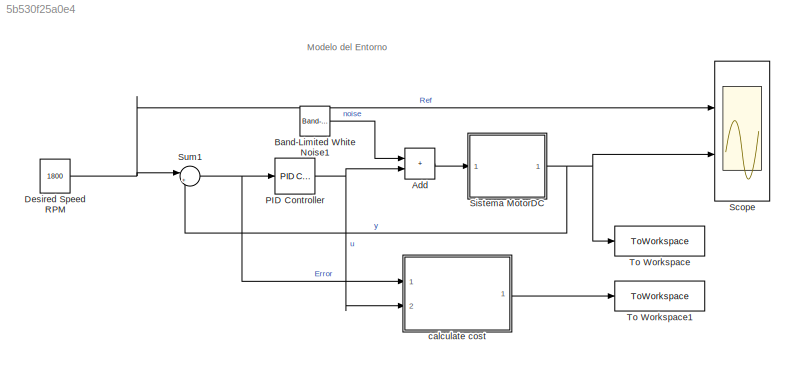
MODEL slx_5b530f25a0e4
KIND model
CONFIG AbsTol = auto
CONFIG EnableMultiTasking = on
CONFIG FixedStep = auto
CONFIG MaxStep = auto
CONFIG MinStep = auto
CONFIG RelTol = 1e-3
CONFIG SampleTimeConstraint = Unconstrained
CONFIG SolverName = ode45
CONFIG StartTime = 0.0
CONFIG StopTime = Tf
BLOCK [Sum] Add
  IconShape = rectangular
  Ports = [2, 1]
BLOCK [Reference] Band-Limited White Noise1  REF=simulink/Sources/Band-Limited
White Noise
  Ports = [0, 1]
  SourceBlock = simulink/Sources/Band-Limited\nWhite Noise
  SourceProductBaseCode = SL
  SourceType = Band-Limited White Noise.
BLOCK [Constant] Desired Speed RPM
  Value = 1800
BLOCK [Reference] PID Controller  REF=slpidlib/PID Controller
  Ports = [1, 1]
  SourceBlock = slpidlib/PID Controller
  SourceProductBaseCode = SL
  SourceType = PID 1dof
  Tag = PID1
BLOCK [Scope] Scope
  Floating = off
  NumInputPorts = 2
  Ports = [2]
  ScopeSpecificationString = Simulink.scopes.TimeScopeBlockCfg('CurrentConfiguration', extmgr.ConfigurationSet(extmgr.Configuration('Core','General UI',true),extmgr.Configuration('Core','Source UI',true),extmgr.Configuration('Sources','WiredSimulink',true),extmgr.Configuration('Visuals','Time Domain',true,'SerializedDisplays',{struct('MinYLimReal','-225.0033','MaxYLimReal','2025.02969','YLabelReal','','MinYLimMag',' 0.00000',...<+1423ch>
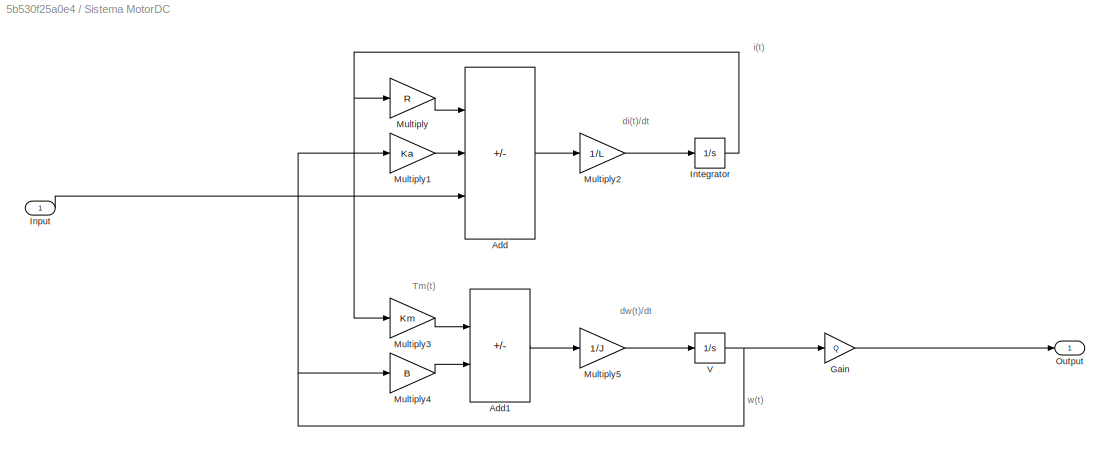
BLOCK [SubSystem] Sistema MotorDC
  Ports = [1, 1]
  RequestExecContextInheritance = off
BLOCK [Sum] Sistema MotorDC/Add
  IconShape = rectangular
  Inputs = --+
  Ports = [3, 1]
BLOCK [Sum] Sistema MotorDC/Add1
  IconShape = rectangular
  Inputs = +-
  Ports = [2, 1]
BLOCK [Gain] Sistema MotorDC/Gain
  Gain = Q
BLOCK [Inport] Sistema MotorDC/Input
BLOCK [Integrator] Sistema MotorDC/Integrator
  Ports = [1, 1]
BLOCK [Gain] Sistema MotorDC/Multiply
  Gain = R
BLOCK [Gain] Sistema MotorDC/Multiply1
  Gain = Ka
BLOCK [Gain] Sistema MotorDC/Multiply2
  Gain = 1/L
BLOCK [Gain] Sistema MotorDC/Multiply3
  Gain = Km
BLOCK [Gain] Sistema MotorDC/Multiply4
  Gain = B
BLOCK [Gain] Sistema MotorDC/Multiply5
  Gain = 1/J
BLOCK [Outport] Sistema MotorDC/Output
  VectorParamsAs1DForOutWhenUnconnected = off
BLOCK [Integrator] Sistema MotorDC/V
  LimitOutput = on
  LowerSaturationLimit = 0
  Ports = [1, 1]
BLOCK [Sum] Sum1
  Inputs = |+-
  Ports = [2, 1]
  SaturateOnIntegerOverflow = on
BLOCK [ToWorkspace] To Workspace
  FixptAsFi = on
  MaxDataPoints = inf
  Ports = [1]
  SampleTime = -1
  SaveFormat = Timeseries
  VariableName = simout
BLOCK [ToWorkspace] To Workspace1
  FixptAsFi = on
  MaxDataPoints = inf
  Ports = [1]
  SampleTime = -1
  SaveFormat = Timeseries
  VariableName = cost
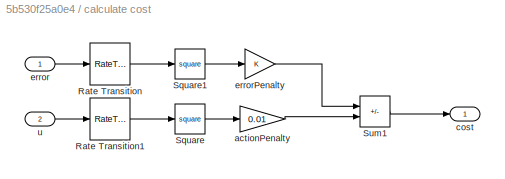
BLOCK [SubSystem] calculate cost
  Ports = [2, 1]
  RequestExecContextInheritance = off
BLOCK [RateTransition] calculate cost/Rate Transition
  OutPortSampleTime = Ts
BLOCK [RateTransition] calculate cost/Rate Transition1
  OutPortSampleTime = Ts
BLOCK [Math] calculate cost/Square
  Operator = square
  Ports = [1, 1]
BLOCK [Math] calculate cost/Square1
  Operator = square
  Ports = [1, 1]
BLOCK [Sum] calculate cost/Sum1
  IconShape = rectangular
  Inputs = --
  OutDataTypeStr = double
  Ports = [2, 1]
BLOCK [Gain] calculate cost/actionPenalty
  Gain = 0.01
BLOCK [Outport] calculate cost/cost
  VectorParamsAs1DForOutWhenUnconnected = off
BLOCK [Inport] calculate cost/error
BLOCK [Gain] calculate cost/errorPenalty
BLOCK [Inport] calculate cost/u
  Port = 2
ANNOTATION (root): Modelo del Entorno
ANNOTATION Sistema MotorDC: Tm(t)
ANNOTATION Sistema MotorDC: di(t)/dt
ANNOTATION Sistema MotorDC: dw(t)/dt
ANNOTATION Sistema MotorDC: i(t)
ANNOTATION Sistema MotorDC: w(t)
LINE Add:1 -> Sistema MotorDC:1
LINE Band-Limited White Noise1:1 -> Add:1
NET Desired Speed RPM:1 -> Scope:1, Sum1:1
NET PID Controller:1 -> Add:2, calculate cost:2
LINE Sistema MotorDC/Add1:1 -> Sistema MotorDC/Multiply5:1
LINE Sistema MotorDC/Add:1 -> Sistema MotorDC/Multiply2:1
LINE Sistema MotorDC/Gain:1 -> Sistema MotorDC/Output:1
LINE Sistema MotorDC/Input:1 -> Sistema MotorDC/Add:3
NET Sistema MotorDC/Integrator:1 -> Sistema MotorDC/Multiply3:1, Sistema MotorDC/Multiply:1
LINE Sistema MotorDC/Multiply1:1 -> Sistema MotorDC/Add:2
LINE Sistema MotorDC/Multiply2:1 -> Sistema MotorDC/Integrator:1
LINE Sistema MotorDC/Multiply3:1 -> Sistema MotorDC/Add1:1
LINE Sistema MotorDC/Multiply4:1 -> Sistema MotorDC/Add1:2
LINE Sistema MotorDC/Multiply5:1 -> Sistema MotorDC/V:1
LINE Sistema MotorDC/Multiply:1 -> Sistema MotorDC/Add:1
NET Sistema MotorDC/V:1 -> Sistema MotorDC/Gain:1, Sistema MotorDC/Multiply1:1, Sistema MotorDC/Multiply4:1
NET Sistema MotorDC:1 -> Scope:2, Sum1:2, To Workspace:1
NET Sum1:1 -> PID Controller:1, calculate cost:1
LINE calculate cost/Rate Transition1:1 -> calculate cost/Square:1
LINE calculate cost/Rate Transition:1 -> calculate cost/Square1:1
LINE calculate cost/Square1:1 -> calculate cost/errorPenalty:1
LINE calculate cost/Square:1 -> calculate cost/actionPenalty:1
LINE calculate cost/Sum1:1 -> calculate cost/cost:1
LINE calculate cost/actionPenalty:1 -> calculate cost/Sum1:2
LINE calculate cost/error:1 -> calculate cost/Rate Transition:1
LINE calculate cost/errorPenalty:1 -> calculate cost/Sum1:1
LINE calculate cost/u:1 -> calculate cost/Rate Transition1:1
LINE calculate cost:1 -> To Workspace1:1
note: NET lines group one-source signal fan-out (src -> all destinations, sorted); 1:1 wires keep LINE
